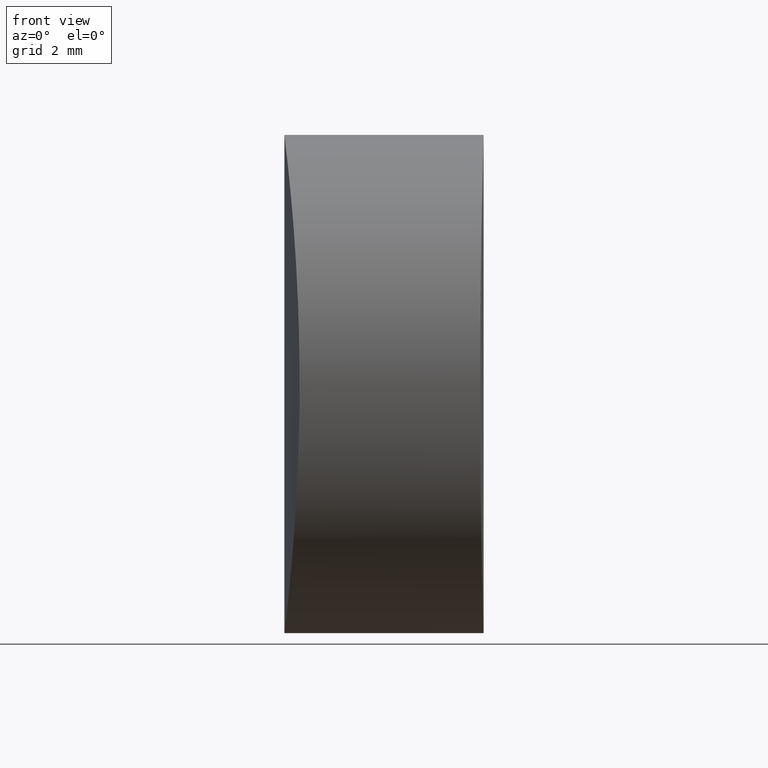
[diagram: clean part render]
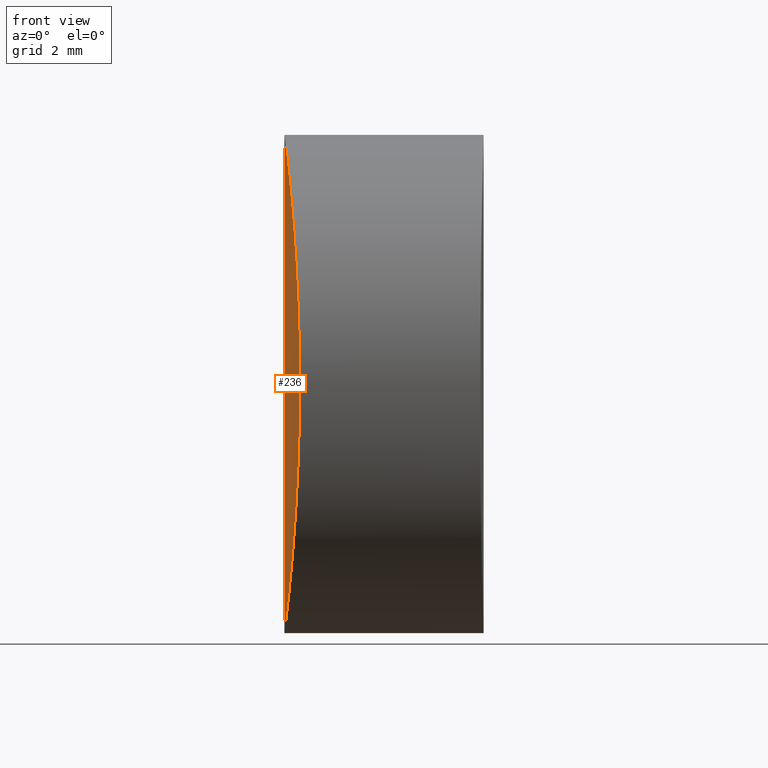
[diagram: same view with one face highlighted and labeled with its STEP entity id]
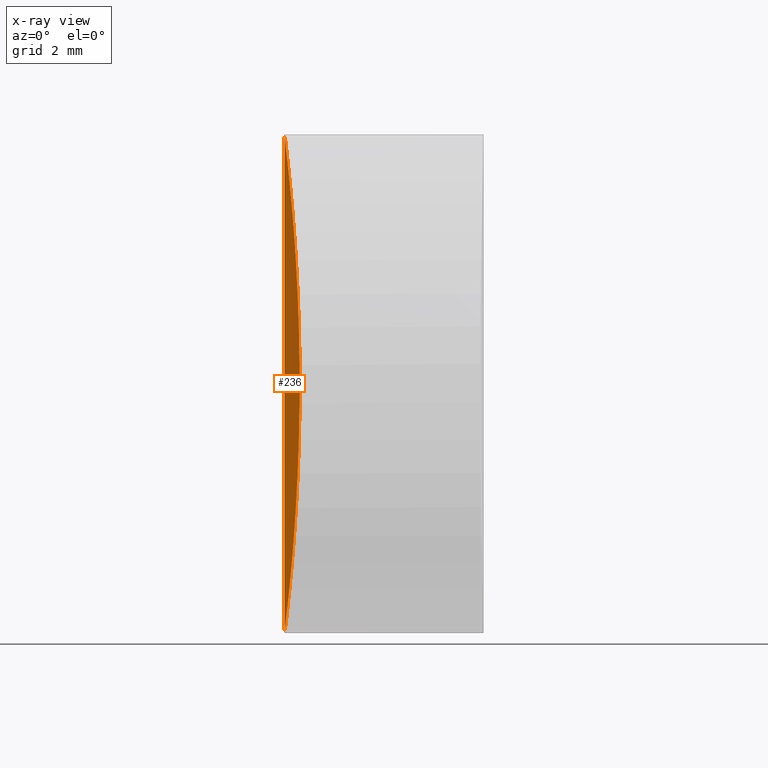
[diagram: x-ray of the same camera — body ghosted, the highlighted face saturated]
A machine part, front view. The second image highlights one B-rep face of the part: STEP entity #236.
The next image is the same camera in x-ray: the body ghosted, the highlighted face saturated — about 0% of this face is hidden behind the body in this view.
In plain terms, the highlighted cylindrical surface (partial cylindrical patch) has radius 51.21 mm, axis along (-0, -0, -1).
Its self-contained STEP definition (entity closure, byte-faithful):
#7 = CARTESIAN_POINT ( 'NONE',  ( 6.938893903907228378E-15, 0.000000000000000000, 12.50000000000000000 ) ) ;
#13 = CARTESIAN_POINT ( 'NONE',  ( 6.938893903907228378E-15, -4.438766178463325818E-15, 12.50000000000000000 ) ) ;
#14 = ORIENTED_EDGE ( 'NONE', *, *, #22, .T. ) ;
#15 = CARTESIAN_POINT ( 'NONE',  ( 0.3828257305944106070, -6.249996462997938096, 5.836865023526897289 ) ) ;
#17 = CARTESIAN_POINT ( 'NONE',  ( 0.004996378150280787918, -0.8215182583297128138, 0.04055378412727692061 ) ) ;
#22 = EDGE_CURVE ( 'NONE', #279, #299, #175, .T. ) ;
#38 = CARTESIAN_POINT ( 'NONE',  ( 0.07364198196778566630, -2.771339476991847572, 11.86691820979531542 ) ) ;
#40 = CARTESIAN_POINT ( 'NONE',  ( 0.3575085436868892241, -6.040844418379513137, 4.633591337930192289 ) ) ;
#43 = CARTESIAN_POINT ( 'NONE',  ( 0.3777915393958323764, -6.209452250964002218, 7.071474277320389135 ) ) ;
#46 = CARTESIAN_POINT ( 'NONE',  ( 0.3777926432282685543, -6.209443801628257376, 5.430760212841397205 ) ) ;
#49 = CARTESIAN_POINT ( 'NONE',  ( 0.02513886438214830640, -1.616378308867191915, 12.29085265313310238 ) ) ;
#71 = CARTESIAN_POINT ( 'NONE',  ( 0.01925563739358690171, -1.418344335848756854, 12.34034170673427688 ) ) ;
#76 = CARTESIAN_POINT ( 'NONE',  ( 0.06498901591306401049, -2.585981678114232629, 0.5564456760228483345 ) ) ;
#83 = DIRECTION ( 'NONE',  ( -1.000000000000000000, 0.000000000000000000, 0.000000000000000000 ) ) ;
#93 = CARTESIAN_POINT ( 'NONE',  ( 0.1659949999802544374, -4.130033944562727655, 10.95861138152387682 ) ) ;
#95 = CARTESIAN_POINT ( 'NONE',  ( 0.3828266003980797527, -6.250003536543905724, 6.663027952396508802 ) ) ;
#99 = CARTESIAN_POINT ( 'NONE',  ( 0.07465054315369504256, -2.769960385778533318, 0.6436148614090170250 ) ) ;
#119 = CARTESIAN_POINT ( 'NONE',  ( 0.03904567890450411777, -2.009010248410235011, 12.17186266608946177 ) ) ;
#122 = DIRECTION ( 'NONE',  ( -0.000000000000000000, -0.000000000000000000, -1.000000000000000000 ) ) ;
#124 = EDGE_LOOP ( 'NONE', ( #253, #14 ) ) ;
#125 = CARTESIAN_POINT ( 'NONE',  ( 0.3439857475047735091, -5.927677961578656785, 8.272518875110504766 ) ) ;
#127 = CARTESIAN_POINT ( 'NONE',  ( 8.466517824280360617E-15, -0.4130772870866644131, 1.135024149320762947E-16 ) ) ;
#129 = DIRECTION ( 'NONE',  ( -0.000000000000000000, -0.000000000000000000, -1.000000000000000000 ) ) ;
#149 = CARTESIAN_POINT ( 'NONE',  ( 0.3087302805166077802, -5.616914490567292972, 3.478654293363939498 ) ) ;
#150 = CARTESIAN_POINT ( 'NONE',  ( 0.2161145303124736849, -4.708626108805615829, 2.119983370260377864 ) ) ;
#152 = CARTESIAN_POINT ( 'NONE',  ( 0.03857463754648707971, -2.022554222391592216, 0.3223341241284934933 ) ) ;
#175 = LINE ( 'NONE', #7, #272 ) ;
#176 = CARTESIAN_POINT ( 'NONE',  ( 0.3583252059185214611, -6.047965350123814865, 7.879181502780681967 ) ) ;
#196 = CARTESIAN_POINT ( 'NONE',  ( 6.938893903907228378E-15, -4.438766178463325818E-15, 12.50000000000000000 ) ) ;
#199 = B_SPLINE_CURVE_WITH_KNOTS ( 'NONE', 3,
 ( #13, #286, #328, #71, #49, #119, #304, #38, #282, #325, #93, #210, #284, #205, #300, #252, #228, #125, #176, #43, #95, #15, #46, #280, #40, #333, #232, #149, #255, #307, #150, #256, #230, #331, #208, #99, #76, #152, #258, #17, #127, #234 ),
 .UNSPECIFIED., .F., .F.,
 ( 4, 2, 2, 2, 2, 2, 2, 2, 2, 2, 2, 2, 2, 2, 2, 2, 2, 2, 2, 2, 4 ),
 ( -0.009772485018447484018, -0.008550917797556763580, -0.007940134187111404229, -0.007329350576666043143, -0.006107783355775321839, -0.004886216134884599667, -0.003664648913993878362, -0.003053865303548519879, -0.002443081693103160527, -0.001221514472212446162, 5.274867826733642406E-08, 0.001221619969568980835, 0.001832403580014336716, 0.002443187190459692598, 0.003664754411350406096, 0.004886321632241119595, 0.006107888853131834828, 0.006718672463577192444, 0.007329456074022546591, 0.008551023294913258355, 0.009772590515803970118 ),
 .UNSPECIFIED. ) ;
#201 = AXIS2_PLACEMENT_3D ( 'NONE', #339, #129, #83 ) ;
#205 = CARTESIAN_POINT ( 'NONE',  ( 0.2756230888346872243, -5.307215534080800268, 9.557282258806530706 ) ) ;
#208 = CARTESIAN_POINT ( 'NONE',  ( 0.09543534670040704215, -3.130163720355521040, 0.8364697336427239227 ) ) ;
#210 = CARTESIAN_POINT ( 'NONE',  ( 0.2158616995286703755, -4.705899044569928691, 10.38312420667131875 ) ) ;
#228 = CARTESIAN_POINT ( 'NONE',  ( 0.3174314458988509724, -5.693569526573190487, 8.835948220705141409 ) ) ;
#230 = CARTESIAN_POINT ( 'NONE',  ( 0.1414606555378817576, -3.819074287584202754, 1.285548167891808369 ) ) ;
#232 = CARTESIAN_POINT ( 'NONE',  ( 0.3354098215465750599, -5.852042039911818705, 4.045912815219525172 ) ) ;
#234 = CARTESIAN_POINT ( 'NONE',  ( 8.437697195808742108E-15, -1.876419484709403194E-31, 2.253504557900801592E-16 ) ) ;
#236 = ADVANCED_FACE ( 'NONE', ( #240 ), #283, .T. ) ;
#240 = FACE_OUTER_BOUND ( 'NONE', #124, .T. ) ;
#252 = CARTESIAN_POINT ( 'NONE',  ( 0.3077233275802390700, -5.606401388316049506, 9.019927506061669931 ) ) ;
#253 = ORIENTED_EDGE ( 'NONE', *, *, #326, .F. ) ;
#255 = CARTESIAN_POINT ( 'NONE',  ( 0.2876673644522211304, -5.425125331843922538, 3.119978980005408520 ) ) ;
#256 = CARTESIAN_POINT ( 'NONE',  ( 0.1662482354401659534, -4.133149032654082511, 1.544123220023460030 ) ) ;
#258 = CARTESIAN_POINT ( 'NONE',  ( 0.02432879407562030943, -1.629218021449494458, 0.2020447095593234932 ) ) ;
#272 = VECTOR ( 'NONE', #122, 1000.000000000000000 ) ;
#279 = VERTEX_POINT ( 'NONE', #196 ) ;
#280 = CARTESIAN_POINT ( 'NONE',  ( 0.3634314432637497094, -6.090333757436803275, 4.831621960958019102 ) ) ;
#282 = CARTESIAN_POINT ( 'NONE',  ( 0.09461288183620379655, -3.130022284793115617, 11.67512511701257694 ) ) ;
#283 = CYLINDRICAL_SURFACE ( 'NONE', #201, 51.20999999999999375 ) ;
#284 = CARTESIAN_POINT ( 'NONE',  ( 0.2406871432519115950, -4.964473700835701386, 10.06904589290706298 ) ) ;
#286 = CARTESIAN_POINT ( 'NONE',  ( 6.974363408573502204E-15, -0.4130860730014506710, 12.50000000000000178 ) ) ;
#299 = VERTEX_POINT ( 'NONE', #309 ) ;
#300 = CARTESIAN_POINT ( 'NONE',  ( 0.2868520252281814842, -5.413548494469587524, 9.380132203881364816 ) ) ;
#304 = CARTESIAN_POINT ( 'NONE',  ( 0.04710311789368050450, -2.204068077948134530, 12.10204939109675770 ) ) ;
#307 = CARTESIAN_POINT ( 'NONE',  ( 0.2414378568059300234, -4.972083966201026328, 2.441142233573262654 ) ) ;
#309 = CARTESIAN_POINT ( 'NONE',  ( 8.437697195808742108E-15, -1.876419484709403194E-31, 2.253504557900801592E-16 ) ) ;
#325 = CARTESIAN_POINT ( 'NONE',  ( 0.1407103015664872003, -3.808869837697208549, 11.22207528080807215 ) ) ;
#326 = EDGE_CURVE ( 'NONE', #279, #299, #199, .T. ) ;
#328 = CARTESIAN_POINT ( 'NONE',  ( 0.004993865505922950344, -0.8191965438438439939, 12.45944990009897602 ) ) ;
#331 = CARTESIAN_POINT ( 'NONE',  ( 0.1066242266087132212, -3.307313012296397847, 0.9428036365188691148 ) ) ;
#333 = CARTESIAN_POINT ( 'NONE',  ( 0.3435147001095155694, -5.921854594423110463, 4.240966298841371440 ) ) ;
#339 = CARTESIAN_POINT ( 'NONE',  ( 51.21000000000000085, 0.000000000000000000, 12.50000000000000000 ) ) ;